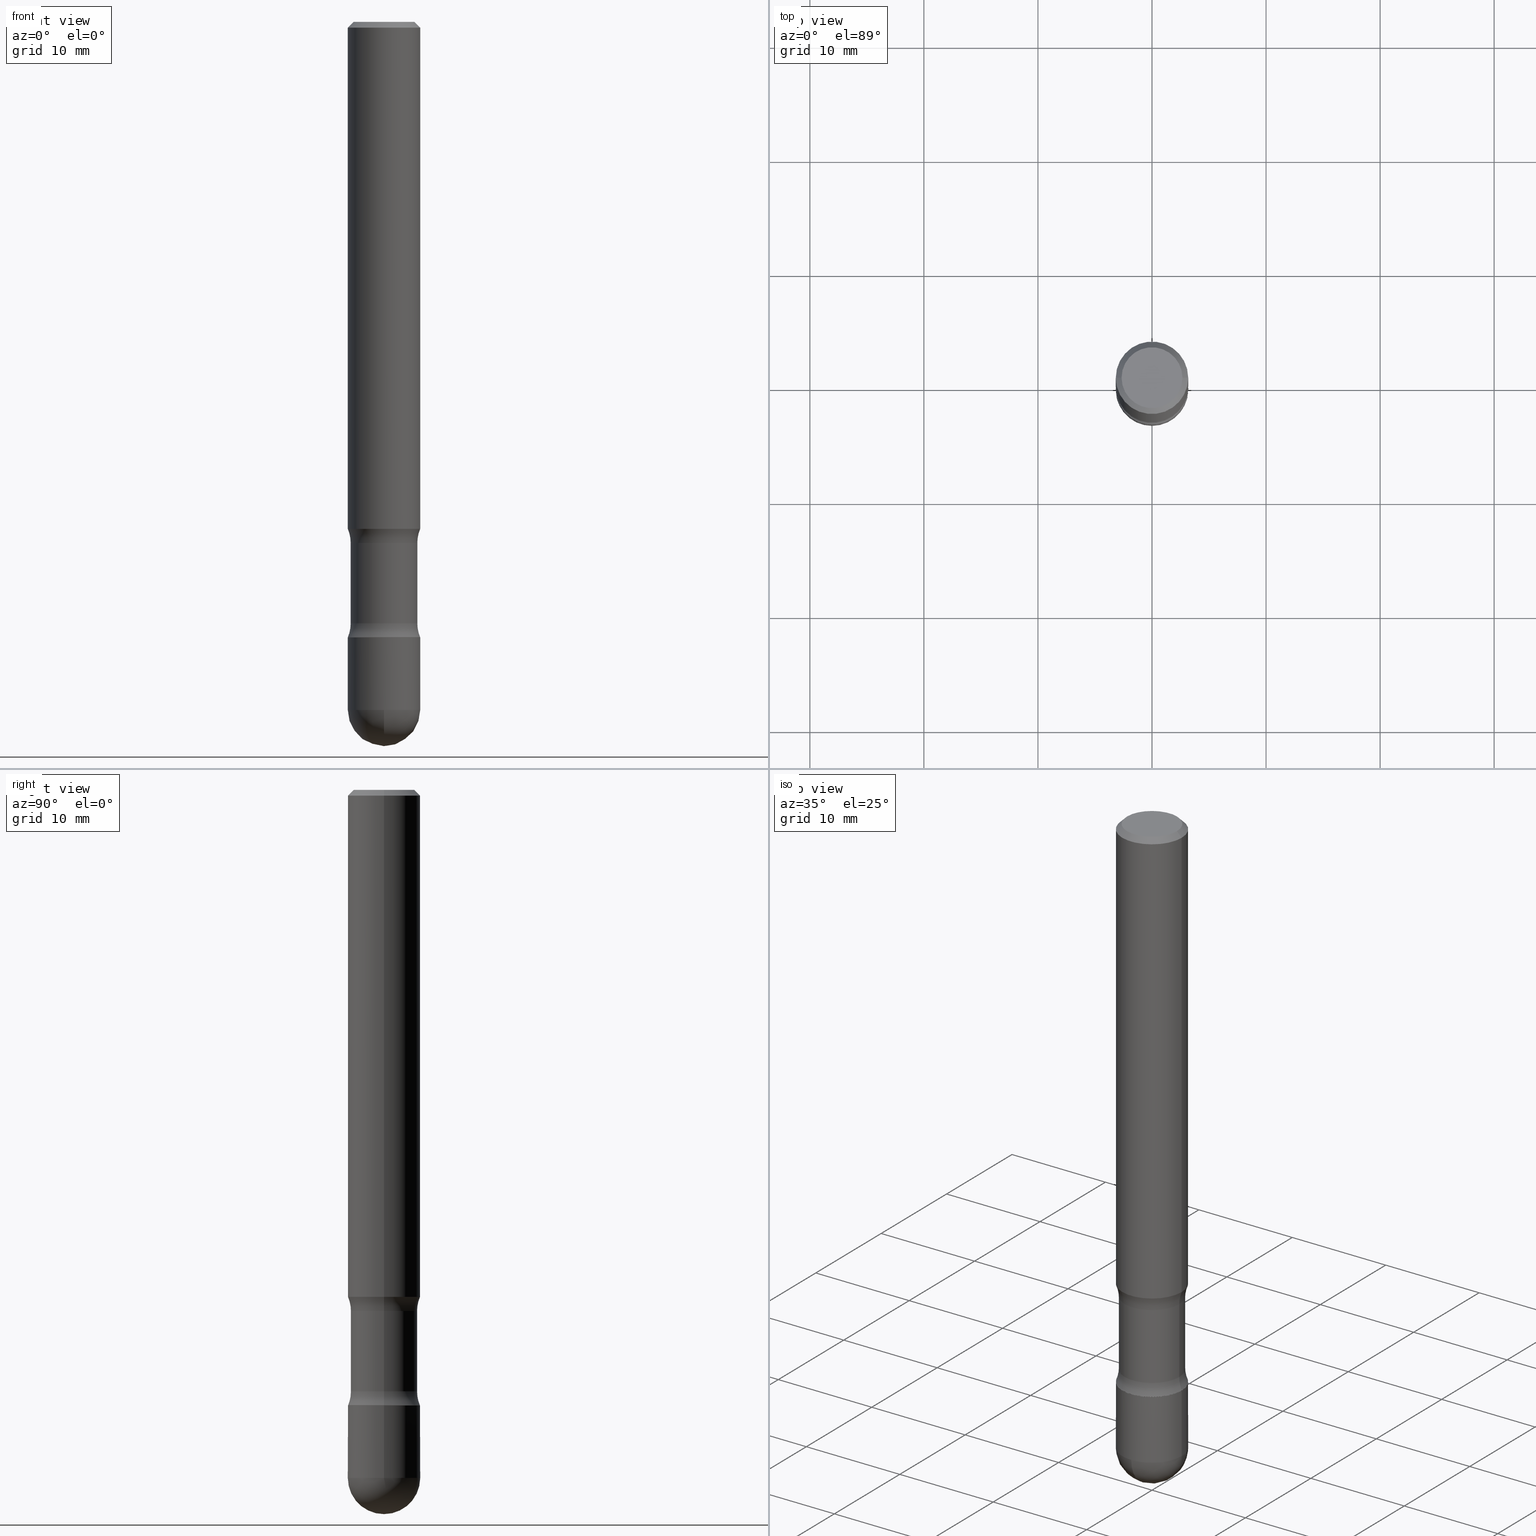
[diagram: canonical four-view strip — front | top / right | iso, engineering-drawing reading convention]
A machine part, canonical four-view strip (front | top / right | iso — engineering-drawing reading convention). The complete STEP part file that produces these views, byte-faithful:
ISO-10303-21;
HEADER;
FILE_DESCRIPTION (( 'STEP AP203' ),
    '1' );
FILE_NAME ('35005.STEP',
    '2024-02-29T19:23:56',
    ( '' ),
    ( '' ),
    'SwSTEP 2.0',
    'SolidWorks 2023',
    '' );
FILE_SCHEMA (( 'CONFIG_CONTROL_DESIGN' ));
ENDSEC;

DATA;
#1 = DIRECTION ( 'NONE',  ( 2.445468806185136597E-29, -3.491481338843145583E-15, -1.000000000000000000 ) ) ;
#2 = VERTEX_POINT ( 'NONE', #199 ) ;
#3 = CALENDAR_DATE ( 2024, 29, 2 ) ;
#4 = CARTESIAN_POINT ( 'NONE',  ( 5.196621213143415268E-29, -7.419397845041683624E-15, -2.125000000000000000 ) ) ;
#5 = CARTESIAN_POINT ( 'NONE',  ( -0.1249999999999995559, -6.967654592696955583E-15, -2.125000000000000000 ) ) ;
#6 = EDGE_CURVE ( 'NONE', #159, #195, #90, .T. ) ;
#7 = CARTESIAN_POINT ( 'NONE',  ( 5.807988414689700538E-29, -8.292268179752471696E-15, -2.375000000000000000 ) ) ;
#8 = DIRECTION ( 'NONE',  ( 1.000000000000000000, -6.982962677686264344E-15, 0.000000000000000000 ) ) ;
#9 = CIRCLE ( 'NONE', #82, 0.1249999999999999584 ) ;
#10 = EDGE_CURVE ( 'NONE', #56, #120, #84, .T. ) ;
#11 = AXIS2_PLACEMENT_3D ( 'NONE', #4, #391, #37 ) ;
#12 = CARTESIAN_POINT ( 'NONE',  ( 5.076818198002480167E-29, -7.248350890509379489E-15, -2.076010205144336318 ) ) ;
#13 = EDGE_CURVE ( 'NONE', #423, #54, #50, .T. ) ;
#14 = FACE_OUTER_BOUND ( 'NONE', #119, .T. ) ;
#15 = ORIENTED_EDGE ( 'NONE', *, *, #385, .F. ) ;
#16 = DIRECTION ( 'NONE',  ( -1.000000000000000000, 6.982962677686266711E-15, 0.000000000000000000 ) ) ;
#17 = SPHERICAL_SURFACE ( 'NONE', #566, 0.1250000000000000000 ) ;
#18 = ORIENTED_EDGE ( 'NONE', *, *, #43, .F. ) ;
#19 = CIRCLE ( 'NONE', #227, 0.1249999999999946709 ) ;
#20 = ORIENTED_EDGE ( 'NONE', *, *, #271, .T. ) ;
#21 = ORGANIZATION ( 'UNSPECIFIED', 'UNSPECIFIED', '' ) ;
#22 = EDGE_LOOP ( 'NONE', ( #280, #390 ) ) ;
#23 = DIRECTION ( 'NONE',  ( -2.445468806185136597E-29, 3.491481338843145583E-15, 1.000000000000000000 ) ) ;
#24 = ORIENTED_EDGE ( 'NONE', *, *, #94, .T. ) ;
#25 = PRODUCT_DEFINITION_SHAPE ( 'NONE', 'NONE',  #468 ) ;
#26 = VERTEX_POINT ( 'NONE', #134 ) ;
#27 = EDGE_CURVE ( 'NONE', #61, #337, #42, .T. ) ;
#28 = DIRECTION ( 'NONE',  ( 6.860497997771531562E-15, 1.000000000000000000, -3.491481338843145583E-15 ) ) ;
#29 = CALENDAR_DATE ( 2024, 29, 2 ) ;
#30 = ADVANCED_FACE ( 'NONE', ( #87 ), #179, .T. ) ;
#31 = CC_DESIGN_PERSON_AND_ORGANIZATION_ASSIGNMENT ( #206, #36, ( #40 ) ) ;
#32 = EDGE_CURVE ( 'NONE', #56, #61, #101, .T. ) ;
#33 = VECTOR ( 'NONE', #349, 39.37007874015748143 ) ;
#34 = ORIENTED_EDGE ( 'NONE', *, *, #238, .F. ) ;
#35 = FACE_OUTER_BOUND ( 'NONE', #477, .T. ) ;
#36 = PERSON_AND_ORGANIZATION_ROLE ( 'design_supplier' ) ;
#37 = DIRECTION ( 'NONE',  ( -1.000000000000000000, 6.982962677686265922E-15, -4.876176775795935793E-29 ) ) ;
#38 = CIRCLE ( 'NONE', #203, 0.1249999999999995559 ) ;
#39 = PERSON_AND_ORGANIZATION ( #392, #21 ) ;
#40 = PRODUCT_DEFINITION_FORMATION_WITH_SPECIFIED_SOURCE ( 'ANY', '', #538, .NOT_KNOWN. ) ;
#41 = DIRECTION ( 'NONE',  ( 1.000000000000000000, -6.982962677686267499E-15, 0.000000000000000000 ) ) ;
#42 = LINE ( 'NONE', #304, #333 ) ;
#43 = EDGE_CURVE ( 'NONE', #389, #400, #9, .T. ) ;
#44 = CARTESIAN_POINT ( 'NONE',  ( 0.1249999999999995559, -8.292268179752463807E-15, -2.125000000000000000 ) ) ;
#45 = CARTESIAN_POINT ( 'NONE',  ( 0.1249999999999999584, -3.947523234597624247E-15, -1.750000000000001776 ) ) ;
#46 = ORIENTED_EDGE ( 'NONE', *, *, #197, .T. ) ;
#47 = CARTESIAN_POINT ( 'NONE',  ( 0.000000000000000000, 0.000000000000000000, 0.000000000000000000 ) ) ;
#48 = EDGE_CURVE ( 'NONE', #535, #26, #161, .T. ) ;
#49 = CARTESIAN_POINT ( 'NONE',  ( 0.000000000000000000, 0.000000000000000000, 0.000000000000000000 ) ) ;
#50 = CIRCLE ( 'NONE', #478, 0.1248510749934465813 ) ;
#51 = AXIS2_PLACEMENT_3D ( 'NONE', #328, #23, #335 ) ;
#52 = LOCAL_TIME ( 14, 23, 56.00000000000000000, #384 ) ;
#53 = CARTESIAN_POINT ( 'NONE',  ( 5.195762670198309491E-29, -7.418172073253531397E-15, -2.124648925006553224 ) ) ;
#54 = VERTEX_POINT ( 'NONE', #110 ) ;
#55 = CC_DESIGN_PERSON_AND_ORGANIZATION_ASSIGNMENT ( #467, #421, ( #40 ) ) ;
#56 = VERTEX_POINT ( 'NONE', #326 ) ;
#57 = FACE_OUTER_BOUND ( 'NONE', #499, .T. ) ;
#58 = EDGE_LOOP ( 'NONE', ( #268, #125, #485, #554 ) ) ;
#59 = ORIENTED_EDGE ( 'NONE', *, *, #208, .T. ) ;
#60 = CIRCLE ( 'NONE', #537, 0.1249999999999995559 ) ;
#61 = VERTEX_POINT ( 'NONE', #452 ) ;
#62 = ORIENTED_EDGE ( 'NONE', *, *, #247, .F. ) ;
#63 = ADVANCED_BREP_SHAPE_REPRESENTATION ( '35005', ( #284, #289, #310 ), #185 ) ;
#64 = ORIENTED_EDGE ( 'NONE', *, *, #340, .F. ) ;
#65 = DIRECTION ( 'NONE',  ( -1.000000000000000000, 6.982962677686266711E-15, -4.883557194083113462E-29 ) ) ;
#66 = ORIENTED_EDGE ( 'NONE', *, *, #92, .T. ) ;
#67 = EDGE_CURVE ( 'NONE', #26, #535, #149, .T. ) ;
#68 = APPLICATION_PROTOCOL_DEFINITION ( 'international standard', 'config_control_design', 1994, #172 ) ;
#69 = ORIENTED_EDGE ( 'NONE', *, *, #340, .T. ) ;
#70 = EDGE_LOOP ( 'NONE', ( #541, #285, #62, #393 ) ) ;
#71 = DATE_AND_TIME ( #207, #52 ) ;
#72 = DESIGN_CONTEXT ( 'detailed design', #172, 'design' ) ;
#73 = CIRCLE ( 'NONE', #251, 0.1149999999999994499 ) ;
#74 = LINE ( 'NONE', #459, #323 ) ;
#75 = ORIENTED_EDGE ( 'NONE', *, *, #412, .F. ) ;
#76 = EDGE_CURVE ( 'NONE', #355, #423, #314, .T. ) ;
#77 = EDGE_CURVE ( 'NONE', #104, #410, #226, .T. ) ;
#78 = DIMENSIONAL_EXPONENTS ( 1.000000000000000000, 0.000000000000000000, 0.000000000000000000, 0.000000000000000000, 0.000000000000000000, 0.000000000000000000, 0.000000000000000000 ) ;
#79 = DIRECTION ( 'NONE',  ( -2.438088387897960049E-29, 3.491481338843145188E-15, 1.000000000000000000 ) ) ;
#80 = DIRECTION ( 'NONE',  ( -1.000000000000000000, 6.982962677686266711E-15, 0.000000000000000000 ) ) ;
#81 = ORIENTED_EDGE ( 'NONE', *, *, #495, .F. ) ;
#82 = AXIS2_PLACEMENT_3D ( 'NONE', #341, #296, #466 ) ;
#83 = AXIS2_PLACEMENT_3D ( 'NONE', #350, #178, #275 ) ;
#84 = LINE ( 'NONE', #564, #407 ) ;
#85 = PERSON_AND_ORGANIZATION_ROLE ( 'design_owner' ) ;
#86 = CARTESIAN_POINT ( 'NONE',  ( 5.196621213143415268E-29, -7.419397845041683624E-15, -2.125000000000000000 ) ) ;
#87 = FACE_OUTER_BOUND ( 'NONE', #546, .T. ) ;
#88 = DIRECTION ( 'NONE',  ( -6.982962677686265922E-15, -1.000000000000000000, 4.370956789862821150E-15 ) ) ;
#89 = ADVANCED_FACE ( 'NONE', ( #533 ), #145, .T. ) ;
#90 = CIRCLE ( 'NONE', #286, 0.1249999999999995559 ) ;
#91 = AXIS2_PLACEMENT_3D ( 'NONE', #303, #531, #133 ) ;
#92 = EDGE_CURVE ( 'NONE', #410, #104, #299, .T. ) ;
#93 = DIRECTION ( 'NONE',  ( 1.000000000000000000, -6.982962677686265922E-15, 4.876176775795935793E-29 ) ) ;
#94 = EDGE_CURVE ( 'NONE', #293, #159, #403, .T. ) ;
#95 = DIRECTION ( 'NONE',  ( -6.982962677686266711E-15, -1.000000000000000000, 3.491481338843145583E-15 ) ) ;
#96 = APPLICATION_CONTEXT ( 'configuration controlled 3d designs of mechanical parts and assemblies' ) ;
#97 = FACE_OUTER_BOUND ( 'NONE', #306, .T. ) ;
#98 = FACE_OUTER_BOUND ( 'NONE', #545, .T. ) ;
#99 = PLANE ( 'NONE',  #11 ) ;
#100 = APPROVAL ( #216, 'UNSPECIFIED' ) ;
#101 = CIRCLE ( 'NONE', #183, 0.1149999999999995609 ) ;
#102 = TOROIDAL_SURFACE ( 'NONE', #431, 0.2399999999999879452, 0.1249999999999883843 ) ;
#103 = DIRECTION ( 'NONE',  ( 1.000000000000000000, -6.982962677686265922E-15, 4.876176775795935793E-29 ) ) ;
#104 = VERTEX_POINT ( 'NONE', #360 ) ;
#105 = ORIENTED_EDGE ( 'NONE', *, *, #311, .F. ) ;
#106 = CARTESIAN_POINT ( 'NONE',  ( 5.196621213143415268E-29, -7.419397845041683624E-15, -2.125000000000000000 ) ) ;
#107 = CARTESIAN_POINT ( 'NONE',  ( 4.890937612370288047E-31, -6.982962677686311331E-17, -0.02000000000000005940 ) ) ;
#108 = DIRECTION ( 'NONE',  ( 2.445468806185136597E-29, -3.491481338843145583E-15, -1.000000000000000000 ) ) ;
#109 = FACE_OUTER_BOUND ( 'NONE', #279, .T. ) ;
#110 = CARTESIAN_POINT ( 'NONE',  ( 0.1248510749934465675, -8.274712623265694262E-15, -2.124648925006553224 ) ) ;
#111 = CARTESIAN_POINT ( 'NONE',  ( 0.2399999999999942180, -8.894870409974511155E-15, -2.076010205144337206 ) ) ;
#112 = ORIENTED_EDGE ( 'NONE', *, *, #127, .T. ) ;
#113 = ADVANCED_FACE ( 'NONE', ( #363 ), #418, .T. ) ;
#114 = CARTESIAN_POINT ( 'NONE',  ( 0.1249999999999995559, -8.728703347107801834E-16, 6.095220969744898021E-30 ) ) ;
#115 = AXIS2_PLACEMENT_3D ( 'NONE', #422, #168, #447 ) ;
#116 = FACE_OUTER_BOUND ( 'NONE', #317, .T. ) ;
#117 = ORIENTED_EDGE ( 'NONE', *, *, #160, .T. ) ;
#118 = CARTESIAN_POINT ( 'NONE',  ( 4.890937612370288047E-31, -6.982962677686311331E-17, -0.02000000000000005940 ) ) ;
#119 = EDGE_LOOP ( 'NONE', ( #260, #196, #117, #112, #211 ) ) ;
#120 = VERTEX_POINT ( 'NONE', #329 ) ;
#121 = ORIENTED_EDGE ( 'NONE', *, *, #10, .T. ) ;
#122 = DATE_AND_TIME ( #29, #397 ) ;
#123 = DATE_AND_TIME ( #3, #503 ) ;
#124 = CIRCLE ( 'NONE', #257, 0.1250000000000000000 ) ;
#125 = ORIENTED_EDGE ( 'NONE', *, *, #77, .T. ) ;
#126 = AXIS2_PLACEMENT_3D ( 'NONE', #282, #409, #325 ) ;
#127 = EDGE_CURVE ( 'NONE', #254, #195, #498, .T. ) ;
#128 = CIRCLE ( 'NONE', #514, 0.1249999999999946709 ) ;
#129 = AXIS2_PLACEMENT_3D ( 'NONE', #246, #361, #103 ) ;
#130 = DATE_TIME_ROLE ( 'classification_date' ) ;
#131 = FACE_OUTER_BOUND ( 'NONE', #453, .T. ) ;
#132 = ADVANCED_FACE ( 'NONE', ( #424 ), #214, .F. ) ;
#133 = DIRECTION ( 'NONE',  ( -1.000000000000000000, 6.982962677686262766E-15, 0.000000000000000000 ) ) ;
#134 = CARTESIAN_POINT ( 'NONE',  ( -0.1249999999999996253, 8.030407079339175754E-16, -0.02000000000000005940 ) ) ;
#135 = COORDINATED_UNIVERSAL_TIME_OFFSET ( 5, 0, .BEHIND. ) ;
#136 = CARTESIAN_POINT ( 'NONE',  ( 5.412474005944231364E-29, -8.858667324358121756E-15, -2.375000000000000000 ) ) ;
#137 = ADVANCED_FACE ( 'NONE', ( #109 ), #362, .T. ) ;
#138 = LINE ( 'NONE', #220, #193 ) ;
#139 = DIRECTION ( 'NONE',  ( 2.445468806185136597E-29, -3.491481338843145583E-15, -1.000000000000000000 ) ) ;
#140 = SPHERICAL_SURFACE ( 'NONE', #334, 0.1250000000000000000 ) ;
#141 = CIRCLE ( 'NONE', #264, 0.1149999999999994499 ) ;
#142 = APPROVAL_PERSON_ORGANIZATION ( #510, #562, #212 ) ;
#143 = CARTESIAN_POINT ( 'NONE',  ( -0.1149999999999994499, -6.445310182575463392E-15, -2.076010205144336318 ) ) ;
#144 = DIRECTION ( 'NONE',  ( 7.105427357601001070E-15, 1.000000000000000000, 0.000000000000000000 ) ) ;
#145 = CYLINDRICAL_SURFACE ( 'NONE', #548, 0.1249999999999997918 ) ;
#146 =( NAMED_UNIT ( * ) PLANE_ANGLE_UNIT ( ) SI_UNIT ( $, .RADIAN. ) );
#147 = PLANE ( 'NONE',  #295 ) ;
#148 = DIRECTION ( 'NONE',  ( 6.860497997771531562E-15, 1.000000000000000000, -3.491481338843145583E-15 ) ) ;
#149 = CIRCLE ( 'NONE', #405, 0.1249999999999996253 ) ;
#150 = AXIS2_PLACEMENT_3D ( 'NONE', #228, #224, #395 ) ;
#151 = ORIENTED_EDGE ( 'NONE', *, *, #331, .T. ) ;
#152 = DIRECTION ( 'NONE',  ( 2.445468806185136597E-29, -3.491481338843145583E-15, -1.000000000000000000 ) ) ;
#153 = UNCERTAINTY_MEASURE_WITH_UNIT (LENGTH_MEASURE( 1.000000000000000082E-05 ), #454, 'distance_accuracy_value', 'NONE');
#154 = DIRECTION ( 'NONE',  ( -1.000000000000000000, 6.982962677686266711E-15, -4.883557194083113462E-29 ) ) ;
#155 = DIRECTION ( 'NONE',  ( -2.445468806185136597E-29, 3.491481338843145583E-15, 1.000000000000000000 ) ) ;
#156 = CARTESIAN_POINT ( 'NONE',  ( 5.712812817410001839E-29, -9.302756534208185950E-15, -2.500000000000000000 ) ) ;
#157 = ORIENTED_EDGE ( 'NONE', *, *, #311, .T. ) ;
#158 = ORIENTED_EDGE ( 'NONE', *, *, #434, .F. ) ;
#159 = VERTEX_POINT ( 'NONE', #5 ) ;
#160 = EDGE_CURVE ( 'NONE', #187, #254, #38, .T. ) ;
#161 = CIRCLE ( 'NONE', #469, 0.1249999999999996253 ) ;
#162 = VECTOR ( 'NONE', #482, 39.37007874015748143 ) ;
#163 = FACE_OUTER_BOUND ( 'NONE', #58, .T. ) ;
#164 = ORIENTED_EDGE ( 'NONE', *, *, #43, .T. ) ;
#165 = DIRECTION ( 'NONE',  ( 0.7071067811865474617, -7.319954787623256045E-15, -0.7071067811865474617 ) ) ;
#166 = ORIENTED_EDGE ( 'NONE', *, *, #274, .T. ) ;
#167 = PERSON_AND_ORGANIZATION ( #392, #21 ) ;
#168 = DIRECTION ( 'NONE',  ( 2.445468806185136597E-29, -3.491481338843145583E-15, -1.000000000000000000 ) ) ;
#169 = CIRCLE ( 'NONE', #443, 0.1250000000000000000 ) ;
#170 = APPROVAL_PERSON_ORGANIZATION ( #167, #205, #507 ) ;
#171 = ADVANCED_FACE ( 'NONE', ( #308 ), #102, .F. ) ;
#172 = APPLICATION_CONTEXT ( 'configuration controlled 3d designs of mechanical parts and assemblies' ) ;
#173 = LINE ( 'NONE', #345, #162 ) ;
#174 = CIRCLE ( 'NONE', #491, 0.1244999999999995138 ) ;
#175 = DIRECTION ( 'NONE',  ( 1.000000000000000000, -6.982962677686264344E-15, 0.000000000000000000 ) ) ;
#176 = APPROVAL_STATUS ( 'not_yet_approved' ) ;
#177 = ADVANCED_FACE ( 'NONE', ( #98 ), #140, .T. ) ;
#178 = DIRECTION ( 'NONE',  ( 2.445468806185136597E-29, -3.491481338843145583E-15, -1.000000000000000000 ) ) ;
#179 = CYLINDRICAL_SURFACE ( 'NONE', #557, 0.1249999999999997918 ) ;
#180 = CARTESIAN_POINT ( 'NONE',  ( -8.728703347107256534E-16, -0.1250000000000083544, -2.374999999999999556 ) ) ;
#181 = DIRECTION ( 'NONE',  ( -1.000000000000000000, 6.982962677686264344E-15, 0.000000000000000000 ) ) ;
#182 = DIRECTION ( 'NONE',  ( 2.445468806185136597E-29, -3.491481338843145583E-15, -1.000000000000000000 ) ) ;
#183 = AXIS2_PLACEMENT_3D ( 'NONE', #448, #413, #555 ) ;
#184 = AXIS2_PLACEMENT_3D ( 'NONE', #307, #213, #41 ) ;
#185 =( GEOMETRIC_REPRESENTATION_CONTEXT ( 3 ) GLOBAL_UNCERTAINTY_ASSIGNED_CONTEXT ( ( #153 ) ) GLOBAL_UNIT_ASSIGNED_CONTEXT ( ( #454, #146, #234 ) ) REPRESENTATION_CONTEXT ( 'NONE', 'WORKASPACE' ) );
#186 = DIRECTION ( 'NONE',  ( -2.445468806185136597E-29, 3.491481338843145583E-15, 1.000000000000000000 ) ) ;
#187 = VERTEX_POINT ( 'NONE', #180 ) ;
#188 = ORIENTED_EDGE ( 'NONE', *, *, #274, .F. ) ;
#189 = CARTESIAN_POINT ( 'NONE',  ( 4.890937612370288047E-31, -6.982962677686311331E-17, -0.02000000000000005940 ) ) ;
#190 = DIRECTION ( 'NONE',  ( -2.445468806185136877E-29, 3.491481338843145188E-15, 1.000000000000000000 ) ) ;
#191 = LINE ( 'NONE', #457, #525 ) ;
#192 = ORIENTED_EDGE ( 'NONE', *, *, #331, .F. ) ;
#193 = VECTOR ( 'NONE', #442, 39.37007874015748143 ) ;
#194 = ADVANCED_FACE ( 'NONE', ( #35 ), #17, .T. ) ;
#195 = VERTEX_POINT ( 'NONE', #44 ) ;
#196 = ORIENTED_EDGE ( 'NONE', *, *, #497, .T. ) ;
#197 = EDGE_CURVE ( 'NONE', #423, #337, #19, .T. ) ;
#198 = CARTESIAN_POINT ( 'NONE',  ( 8.693788533719887480E-16, 0.1244999999999920892, -2.125000000000000444 ) ) ;
#199 = CARTESIAN_POINT ( 'NONE',  ( 8.881784197001796637E-16, 0.1249999999999911876, -2.375000000000000888 ) ) ;
#200 = ORIENTED_EDGE ( 'NONE', *, *, #160, .F. ) ;
#201 = APPLICATION_PROTOCOL_DEFINITION ( 'international standard', 'config_control_design', 1994, #96 ) ;
#202 = EDGE_LOOP ( 'NONE', ( #543, #404 ) ) ;
#203 = AXIS2_PLACEMENT_3D ( 'NONE', #351, #266, #8 ) ;
#204 = CALENDAR_DATE ( 2024, 29, 2 ) ;
#205 = APPROVAL ( #339, 'UNSPECIFIED' ) ;
#206 = PERSON_AND_ORGANIZATION ( #392, #21 ) ;
#207 = CALENDAR_DATE ( 2024, 29, 2 ) ;
#208 = EDGE_CURVE ( 'NONE', #104, #535, #74, .T. ) ;
#209 = CONICAL_SURFACE ( 'NONE', #51, 0.1244999999999995138, 0.7853981633980561261 ) ;
#210 = CC_DESIGN_PERSON_AND_ORGANIZATION_ASSIGNMENT ( #342, #305, ( #468 ) ) ;
#211 = ORIENTED_EDGE ( 'NONE', *, *, #6, .F. ) ;
#212 = APPROVAL_ROLE ( '' ) ;
#213 = DIRECTION ( 'NONE',  ( -6.982962677686266711E-15, -1.000000000000000000, 3.491481338843145583E-15 ) ) ;
#214 = TOROIDAL_SURFACE ( 'NONE', #536, 0.2399999999999942180, 0.1249999999999946709 ) ;
#215 = TOROIDAL_SURFACE ( 'NONE', #239, 0.2399999999999942180, 0.1249999999999946709 ) ;
#216 = APPROVAL_STATUS ( 'not_yet_approved' ) ;
#217 = DIRECTION ( 'NONE',  ( 2.445468806185136597E-29, -3.491481338843145583E-15, -1.000000000000000000 ) ) ;
#218 = CARTESIAN_POINT ( 'NONE',  ( 4.399373425964925266E-29, -6.281139297507810384E-15, -1.798989794855664126 ) ) ;
#219 = DIRECTION ( 'NONE',  ( 2.445468806185136597E-29, -3.491481338843145583E-15, -1.000000000000000000 ) ) ;
#220 = CARTESIAN_POINT ( 'NONE',  ( 0.1249999999999997918, -8.276960094763123491E-15, -2.125000000000000000 ) ) ;
#221 = DIRECTION ( 'NONE',  ( -2.445468806185136597E-29, 3.491481338843145583E-15, 1.000000000000000000 ) ) ;
#222 = ADVANCED_FACE ( 'NONE', ( #375 ), #253, .T. ) ;
#223 = DIRECTION ( 'NONE',  ( -1.000000000000000000, 6.982962677686265922E-15, -4.883557194083112340E-29 ) ) ;
#224 = DIRECTION ( 'NONE',  ( 2.445468806185136597E-29, -3.491481338843145583E-15, -1.000000000000000000 ) ) ;
#225 = ORIENTED_EDGE ( 'NONE', *, *, #352, .F. ) ;
#226 = CIRCLE ( 'NONE', #321, 0.1049999999999995659 ) ;
#227 = AXIS2_PLACEMENT_3D ( 'NONE', #273, #95, #231 ) ;
#228 = CARTESIAN_POINT ( 'NONE',  ( 5.196621213143415268E-29, -7.419397845041683624E-15, -2.125000000000000000 ) ) ;
#229 = FACE_OUTER_BOUND ( 'NONE', #230, .T. ) ;
#230 = EDGE_LOOP ( 'NONE', ( #105, #456, #492, #501 ) ) ;
#231 = DIRECTION ( 'NONE',  ( 1.000000000000000000, -6.982962677686265133E-15, 0.000000000000000000 ) ) ;
#232 = ORIENTED_EDGE ( 'NONE', *, *, #48, .T. ) ;
#233 = CARTESIAN_POINT ( 'NONE',  ( 5.076818198002482409E-29, -7.248350890509384222E-15, -2.076010205144337206 ) ) ;
#234 =( NAMED_UNIT ( * ) SI_UNIT ( $, .STERADIAN. ) SOLID_ANGLE_UNIT ( ) );
#235 = ORIENTED_EDGE ( 'NONE', *, *, #451, .T. ) ;
#236 = CC_DESIGN_DATE_AND_TIME_ASSIGNMENT ( #428, #130, ( #372 ) ) ;
#237 = VERTEX_POINT ( 'NONE', #156 ) ;
#238 = EDGE_CURVE ( 'NONE', #56, #389, #558, .T. ) ;
#239 = AXIS2_PLACEMENT_3D ( 'NONE', #233, #152, #65 ) ;
#240 = DIRECTION ( 'NONE',  ( 1.000000000000000000, -6.982962677686262766E-15, 0.000000000000000000 ) ) ;
#241 = CARTESIAN_POINT ( 'NONE',  ( 4.890937612370288047E-31, -6.982962677686311331E-17, -0.02000000000000005940 ) ) ;
#242 = CIRCLE ( 'NONE', #184, 0.1249999999999883843 ) ;
#243 = ORIENTED_EDGE ( 'NONE', *, *, #560, .F. ) ;
#244 = MECHANICAL_CONTEXT ( 'NONE', #96, 'mechanical' ) ;
#245 = ORIENTED_EDGE ( 'NONE', *, *, #27, .T. ) ;
#246 = CARTESIAN_POINT ( 'NONE',  ( 0.000000000000000000, 0.000000000000000000, 0.000000000000000000 ) ) ;
#247 = EDGE_CURVE ( 'NONE', #400, #389, #419, .T. ) ;
#248 = ADVANCED_FACE ( 'NONE', ( #437 ), #147, .T. ) ;
#249 = PERSON_AND_ORGANIZATION ( #392, #21 ) ;
#250 = ORIENTED_EDGE ( 'NONE', *, *, #412, .T. ) ;
#251 = AXIS2_PLACEMENT_3D ( 'NONE', #12, #473, #181 ) ;
#252 = DATE_AND_TIME ( #204, #444 ) ;
#253 = CYLINDRICAL_SURFACE ( 'NONE', #115, 0.1149999999999995054 ) ;
#254 = VERTEX_POINT ( 'NONE', #436 ) ;
#255 = APPROVAL_DATE_TIME ( #71, #205 ) ;
#256 = ADVANCED_FACE ( 'NONE', ( #511 ), #441, .T. ) ;
#257 = AXIS2_PLACEMENT_3D ( 'NONE', #346, #356, #144 ) ;
#258 = LOCAL_TIME ( 14, 23, 56.00000000000000000, #301 ) ;
#259 = DIRECTION ( 'NONE',  ( 2.445468806185136877E-29, -3.491481338843145188E-15, -1.000000000000000000 ) ) ;
#260 = ORIENTED_EDGE ( 'NONE', *, *, #94, .F. ) ;
#261 = APPROVAL_DATE_TIME ( #122, #100 ) ;
#262 = DIRECTION ( 'NONE',  ( -2.445468806185136597E-29, 3.491481338843145583E-15, 1.000000000000000000 ) ) ;
#263 = LINE ( 'NONE', #382, #33 ) ;
#264 = AXIS2_PLACEMENT_3D ( 'NONE', #516, #217, #265 ) ;
#265 = DIRECTION ( 'NONE',  ( -1.000000000000000000, 6.982962677686264344E-15, 0.000000000000000000 ) ) ;
#266 = DIRECTION ( 'NONE',  ( -2.445468806185136597E-29, 3.491481338843145583E-15, 1.000000000000000000 ) ) ;
#267 = DIRECTION ( 'NONE',  ( 2.445468806185136597E-29, -3.491481338843145583E-15, -1.000000000000000000 ) ) ;
#268 = ORIENTED_EDGE ( 'NONE', *, *, #208, .F. ) ;
#269 = DIRECTION ( 'NONE',  ( -0.7071067811869773401, 7.493145998871906638E-15, 0.7071067811861176944 ) ) ;
#270 = CARTESIAN_POINT ( 'NONE',  ( 5.807988414689700538E-29, -8.292268179752471696E-15, -2.375000000000000000 ) ) ;
#271 = EDGE_CURVE ( 'NONE', #120, #337, #141, .T. ) ;
#272 = CARTESIAN_POINT ( 'NONE',  ( 5.076818198002482409E-29, -7.248350890509384222E-15, -2.076010205144337206 ) ) ;
#273 = CARTESIAN_POINT ( 'NONE',  ( -0.2399999999999942180, -5.572439847864720285E-15, -2.076010205144337206 ) ) ;
#274 = EDGE_CURVE ( 'NONE', #450, #355, #174, .T. ) ;
#275 = DIRECTION ( 'NONE',  ( -1.000000000000000000, 6.982962677686266711E-15, 0.000000000000000000 ) ) ;
#276 = CONICAL_SURFACE ( 'NONE', #287, 0.1249999999999996253, 0.7853981633974482790 ) ;
#277 = DIRECTION ( 'NONE',  ( 1.000000000000000000, -6.982962677686264344E-15, 0.000000000000000000 ) ) ;
#278 = DIRECTION ( 'NONE',  ( 2.445468806185136597E-29, -3.491481338843145583E-15, -1.000000000000000000 ) ) ;
#279 = EDGE_LOOP ( 'NONE', ( #66, #59, #316, #243 ) ) ;
#280 = ORIENTED_EDGE ( 'NONE', *, *, #434, .T. ) ;
#281 = DIRECTION ( 'NONE',  ( 2.445468806185136597E-29, -3.491481338843145583E-15, -1.000000000000000000 ) ) ;
#282 = CARTESIAN_POINT ( 'NONE',  ( 0.000000000000000000, 0.000000000000000000, 0.000000000000000000 ) ) ;
#283 = LENGTH_MEASURE_WITH_UNIT ( LENGTH_MEASURE( 0.02539999999999999897 ), #366 );
#284 = MANIFOLD_SOLID_BREP ( 'Body-Move/Copy2[1]', #565 ) ;
#285 = ORIENTED_EDGE ( 'NONE', *, *, #399, .T. ) ;
#286 = AXIS2_PLACEMENT_3D ( 'NONE', #368, #221, #527 ) ;
#287 = AXIS2_PLACEMENT_3D ( 'NONE', #118, #108, #16 ) ;
#288 = CC_DESIGN_SECURITY_CLASSIFICATION ( #372, ( #40 ) ) ;
#289 = MANIFOLD_SOLID_BREP ( 'Body-Move/Copy2[2]', #524 ) ;
#290 = DIRECTION ( 'NONE',  ( 0.000000000000000000, 0.000000000000000000, 1.000000000000000000 ) ) ;
#291 = ORIENTED_EDGE ( 'NONE', *, *, #27, .F. ) ;
#292 = CARTESIAN_POINT ( 'NONE',  ( 0.1249999999999996253, -9.273918764983019825E-16, -0.02000000000000005940 ) ) ;
#293 = VERTEX_POINT ( 'NONE', #435 ) ;
#294 = ORIENTED_EDGE ( 'NONE', *, *, #238, .T. ) ;
#295 = AXIS2_PLACEMENT_3D ( 'NONE', #298, #79, #517 ) ;
#296 = DIRECTION ( 'NONE',  ( 2.445468806185136597E-29, -3.491481338843145583E-15, -1.000000000000000000 ) ) ;
#297 = APPROVAL_ROLE ( '' ) ;
#298 = CARTESIAN_POINT ( 'NONE',  ( 7.332110811570548689E-16, 0.1049999999999995659, -3.900823592740810138E-16 ) ) ;
#299 = CIRCLE ( 'NONE', #126, 0.1049999999999995659 ) ;
#300 = AXIS2_PLACEMENT_3D ( 'NONE', #270, #398, #277 ) ;
#301 = COORDINATED_UNIVERSAL_TIME_OFFSET ( 5, 0, .BEHIND. ) ;
#302 = CARTESIAN_POINT ( 'NONE',  ( -0.1049999999999995659, 7.332110811570549675E-16, -5.119985614585711703E-30 ) ) ;
#303 = CARTESIAN_POINT ( 'NONE',  ( 5.196621213143415268E-29, -7.419397845041683624E-15, -2.125000000000000000 ) ) ;
#304 = CARTESIAN_POINT ( 'NONE',  ( -0.1149999999999995054, -6.616357137107765949E-15, -2.125000000000000000 ) ) ;
#305 = PERSON_AND_ORGANIZATION_ROLE ( 'creator' ) ;
#306 = EDGE_LOOP ( 'NONE', ( #542, #488, #20, #493 ) ) ;
#307 = CARTESIAN_POINT ( 'NONE',  ( -0.2399999999999879452, -4.605228254863190623E-15, -1.798989794855664126 ) ) ;
#308 = FACE_OUTER_BOUND ( 'NONE', #338, .T. ) ;
#309 = AXIS2_PLACEMENT_3D ( 'NONE', #49, #186, #93 ) ;
#310 = AXIS2_PLACEMENT_3D ( 'NONE', #330, #290, #414 ) ;
#311 = EDGE_CURVE ( 'NONE', #355, #450, #425, .T. ) ;
#312 = DIRECTION ( 'NONE',  ( -1.000000000000000000, 6.982962677686265922E-15, 0.000000000000000000 ) ) ;
#313 = ADVANCED_FACE ( 'NONE', ( #131 ), #438, .T. ) ;
#314 = LINE ( 'NONE', #481, #343 ) ;
#315 = DIRECTION ( 'NONE',  ( -1.000000000000000000, 6.982962677686262766E-15, 0.000000000000000000 ) ) ;
#316 = ORIENTED_EDGE ( 'NONE', *, *, #67, .F. ) ;
#317 = EDGE_LOOP ( 'NONE', ( #471, #294, #164, #406 ) ) ;
#318 = DIRECTION ( 'NONE',  ( 2.445468806185136597E-29, -3.491481338843145583E-15, -1.000000000000000000 ) ) ;
#319 = DIRECTION ( 'NONE',  ( -1.000000000000000000, 6.860497997771527618E-15, 0.000000000000000000 ) ) ;
#320 = ORIENTED_EDGE ( 'NONE', *, *, #32, .T. ) ;
#321 = AXIS2_PLACEMENT_3D ( 'NONE', #47, #394, #529 ) ;
#322 = DIRECTION ( 'NONE',  ( 2.445468806185136597E-29, -3.491481338843145583E-15, -1.000000000000000000 ) ) ;
#323 = VECTOR ( 'NONE', #165, 39.37007874015748854 ) ;
#324 = DIRECTION ( 'NONE',  ( -1.000000000000000000, 6.860497997771530774E-15, 0.000000000000000000 ) ) ;
#325 = DIRECTION ( 'NONE',  ( -1.000000000000000000, 6.982962677686266711E-15, -4.876176775795935793E-29 ) ) ;
#326 = CARTESIAN_POINT ( 'NONE',  ( 0.1149999999999995609, -7.018875579974243082E-15, -1.798989794855664126 ) ) ;
#327 = DIRECTION ( 'NONE',  ( -1.000000000000000000, 6.982962677686266711E-15, 0.000000000000000000 ) ) ;
#328 = CARTESIAN_POINT ( 'NONE',  ( 5.196621213143415268E-29, -7.419397845041683624E-15, -2.125000000000000000 ) ) ;
#329 = CARTESIAN_POINT ( 'NONE',  ( 0.1149999999999994499, -7.553702363752317106E-15, -2.076010205144336318 ) ) ;
#330 = CARTESIAN_POINT ( 'NONE',  ( 0.000000000000000000, 0.000000000000000000, 0.000000000000000000 ) ) ;
#331 = EDGE_CURVE ( 'NONE', #237, #187, #169, .T. ) ;
#332 = EDGE_CURVE ( 'NONE', #26, #400, #263, .T. ) ;
#333 = VECTOR ( 'NONE', #476, 39.37007874015748143 ) ;
#334 = AXIS2_PLACEMENT_3D ( 'NONE', #427, #561, #88 ) ;
#335 = DIRECTION ( 'NONE',  ( 1.000000000000000000, -6.982962677686262766E-15, 0.000000000000000000 ) ) ;
#336 = ORIENTED_EDGE ( 'NONE', *, *, #76, .F. ) ;
#337 = VERTEX_POINT ( 'NONE', #143 ) ;
#338 = EDGE_LOOP ( 'NONE', ( #34, #15, #359, #386 ) ) ;
#339 = APPROVAL_STATUS ( 'not_yet_approved' ) ;
#340 = EDGE_CURVE ( 'NONE', #254, #2, #508, .T. ) ;
#341 = CARTESIAN_POINT ( 'NONE',  ( 4.279570410823993529E-29, -6.110092342975510982E-15, -1.750000000000001776 ) ) ;
#342 = PERSON_AND_ORGANIZATION ( #392, #21 ) ;
#343 = VECTOR ( 'NONE', #269, 39.37007874015748143 ) ;
#344 = CIRCLE ( 'NONE', #83, 0.1149999999999995609 ) ;
#345 = CARTESIAN_POINT ( 'NONE',  ( 0.1244999999999995138, -8.288776698413619222E-15, -2.125000000000000000 ) ) ;
#346 = CARTESIAN_POINT ( 'NONE',  ( 5.412474005944231364E-29, -8.858667324358121756E-15, -2.375000000000000000 ) ) ;
#347 = SECURITY_CLASSIFICATION_LEVEL ( 'unclassified' ) ;
#348 = EDGE_CURVE ( 'NONE', #61, #400, #242, .T. ) ;
#349 = DIRECTION ( 'NONE',  ( 2.445468806185136877E-29, -3.491481338843145188E-15, -1.000000000000000000 ) ) ;
#350 = CARTESIAN_POINT ( 'NONE',  ( 4.399373425964925266E-29, -6.281139297507810384E-15, -1.798989794855664126 ) ) ;
#351 = CARTESIAN_POINT ( 'NONE',  ( 5.807988414689700538E-29, -8.292268179752471696E-15, -2.375000000000000000 ) ) ;
#352 = EDGE_CURVE ( 'NONE', #237, #2, #124, .T. ) ;
#353 = AXIS2_PLACEMENT_3D ( 'NONE', #198, #496, #547 ) ;
#354 = ORIENTED_EDGE ( 'NONE', *, *, #385, .T. ) ;
#355 = VERTEX_POINT ( 'NONE', #521 ) ;
#356 = DIRECTION ( 'NONE',  ( 1.000000000000000000, -7.105427357601001070E-15, 4.926315508542082329E-29 ) ) ;
#357 = ORIENTED_EDGE ( 'NONE', *, *, #352, .T. ) ;
#358 = CARTESIAN_POINT ( 'NONE',  ( 5.807988414689700538E-29, -8.292268179752471696E-15, -2.375000000000000000 ) ) ;
#359 = ORIENTED_EDGE ( 'NONE', *, *, #348, .T. ) ;
#360 = CARTESIAN_POINT ( 'NONE',  ( 0.1049999999999995659, -8.238720831321548048E-16, 5.444276250344130447E-30 ) ) ;
#361 = DIRECTION ( 'NONE',  ( -2.445468806185136597E-29, 3.491481338843145583E-15, 1.000000000000000000 ) ) ;
#362 = CONICAL_SURFACE ( 'NONE', #430, 0.1249999999999996253, 0.7853981633974482790 ) ;
#363 = FACE_OUTER_BOUND ( 'NONE', #439, .T. ) ;
#364 = DIRECTION ( 'NONE',  ( -1.000000000000000000, 6.982962677686266711E-15, 0.000000000000000000 ) ) ;
#365 = ORIENTED_EDGE ( 'NONE', *, *, #13, .F. ) ;
#366 =( LENGTH_UNIT ( ) NAMED_UNIT ( * ) SI_UNIT ( $, .METRE. ) );
#367 = EDGE_LOOP ( 'NONE', ( #354, #121, #75, #291 ) ) ;
#368 = CARTESIAN_POINT ( 'NONE',  ( 5.196621213143415268E-29, -7.419397845041683624E-15, -2.125000000000000000 ) ) ;
#369 = DIRECTION ( 'NONE',  ( -0.7071067811865474617, 2.468850131082256666E-15, -0.7071067811865474617 ) ) ;
#370 = ADVANCED_FACE ( 'NONE', ( #387 ), #99, .F. ) ;
#371 = TOROIDAL_SURFACE ( 'NONE', #378, 0.2399999999999879452, 0.1249999999999883843 ) ;
#372 = SECURITY_CLASSIFICATION ( '', '', #347 ) ;
#373 = DIRECTION ( 'NONE',  ( -1.000000000000000000, 6.982962677686266711E-15, 0.000000000000000000 ) ) ;
#374 = APPROVAL_DATE_TIME ( #252, #562 ) ;
#375 = FACE_OUTER_BOUND ( 'NONE', #553, .T. ) ;
#376 = ORIENTED_EDGE ( 'NONE', *, *, #497, .F. ) ;
#377 = COORDINATED_UNIVERSAL_TIME_OFFSET ( 5, 0, .BEHIND. ) ;
#378 = AXIS2_PLACEMENT_3D ( 'NONE', #402, #544, #534 ) ;
#379 = DIRECTION ( 'NONE',  ( -6.982962677686265922E-15, -1.000000000000000000, 0.000000000000000000 ) ) ;
#380 = SHAPE_DEFINITION_REPRESENTATION ( #25, #63 ) ;
#381 = AXIS2_PLACEMENT_3D ( 'NONE', #539, #148, #324 ) ;
#382 = CARTESIAN_POINT ( 'NONE',  ( -0.1249999999999997918, -6.546527510330901862E-15, -2.125000000000000000 ) ) ;
#383 = DIRECTION ( 'NONE',  ( -1.000000000000000000, 6.982962677686265922E-15, 0.000000000000000000 ) ) ;
#384 = COORDINATED_UNIVERSAL_TIME_OFFSET ( 5, 0, .BEHIND. ) ;
#385 = EDGE_CURVE ( 'NONE', #61, #56, #344, .T. ) ;
#386 = ORIENTED_EDGE ( 'NONE', *, *, #247, .T. ) ;
#387 = FACE_OUTER_BOUND ( 'NONE', #22, .T. ) ;
#388 = DIRECTION ( 'NONE',  ( -1.000000000000000000, 6.982962677686265133E-15, 0.000000000000000000 ) ) ;
#389 = VERTEX_POINT ( 'NONE', #45 ) ;
#390 = ORIENTED_EDGE ( 'NONE', *, *, #6, .T. ) ;
#391 = DIRECTION ( 'NONE',  ( 2.438088387897960049E-29, -3.491481338843145188E-15, -1.000000000000000000 ) ) ;
#392 = PERSON ( 'UNSPECIFIED', 'UNSPECIFIED', 'UNSPECIFIED', ('UNSPECIFIED'), ('UNSPECIFIED'), ('UNSPECIFIED') ) ;
#393 = ORIENTED_EDGE ( 'NONE', *, *, #332, .F. ) ;
#394 = DIRECTION ( 'NONE',  ( 2.445468806185136597E-29, -3.491481338843145583E-15, -1.000000000000000000 ) ) ;
#395 = DIRECTION ( 'NONE',  ( -1.000000000000000000, 6.982962677686269866E-15, 0.000000000000000000 ) ) ;
#396 = AXIS2_PLACEMENT_3D ( 'NONE', #53, #526, #312 ) ;
#397 = LOCAL_TIME ( 14, 23, 56.00000000000000000, #135 ) ;
#398 = DIRECTION ( 'NONE',  ( -2.445468806185136597E-29, 3.491481338843145583E-15, 1.000000000000000000 ) ) ;
#399 = EDGE_CURVE ( 'NONE', #535, #389, #138, .T. ) ;
#400 = VERTEX_POINT ( 'NONE', #480 ) ;
#401 = CARTESIAN_POINT ( 'NONE',  ( -0.1249999999999995559, 8.881784197001220769E-16, -6.148668862818609806E-30 ) ) ;
#402 = CARTESIAN_POINT ( 'NONE',  ( 4.399373425964925266E-29, -6.281139297507810384E-15, -1.798989794855664126 ) ) ;
#403 = LINE ( 'NONE', #401, #440 ) ;
#404 = ORIENTED_EDGE ( 'NONE', *, *, #77, .F. ) ;
#405 = AXIS2_PLACEMENT_3D ( 'NONE', #241, #318, #80 ) ;
#406 = ORIENTED_EDGE ( 'NONE', *, *, #348, .F. ) ;
#407 = VECTOR ( 'NONE', #259, 39.37007874015748143 ) ;
#408 = DIRECTION ( 'NONE',  ( -1.000000000000000000, 6.982962677686266711E-15, 0.000000000000000000 ) ) ;
#409 = DIRECTION ( 'NONE',  ( 2.445468806185136597E-29, -3.491481338843145583E-15, -1.000000000000000000 ) ) ;
#410 = VERTEX_POINT ( 'NONE', #302 ) ;
#411 = CC_DESIGN_DATE_AND_TIME_ASSIGNMENT ( #123, #556, ( #468 ) ) ;
#412 = EDGE_CURVE ( 'NONE', #337, #120, #73, .T. ) ;
#413 = DIRECTION ( 'NONE',  ( 2.445468806185136597E-29, -3.491481338843145583E-15, -1.000000000000000000 ) ) ;
#414 = DIRECTION ( 'NONE',  ( 1.000000000000000000, 0.000000000000000000, 0.000000000000000000 ) ) ;
#415 = ORIENTED_EDGE ( 'NONE', *, *, #127, .F. ) ;
#416 = ORIENTED_EDGE ( 'NONE', *, *, #432, .T. ) ;
#417 = CALENDAR_DATE ( 2024, 29, 2 ) ;
#418 = CONICAL_SURFACE ( 'NONE', #463, 0.1244999999999995138, 0.7853981633980561261 ) ;
#419 = CIRCLE ( 'NONE', #502, 0.1249999999999999584 ) ;
#420 = ORIENTED_EDGE ( 'NONE', *, *, #271, .F. ) ;
#421 = PERSON_AND_ORGANIZATION_ROLE ( 'creator' ) ;
#422 = CARTESIAN_POINT ( 'NONE',  ( 5.196621213143415268E-29, -7.419397845041683624E-15, -2.125000000000000000 ) ) ;
#423 = VERTEX_POINT ( 'NONE', #429 ) ;
#424 = FACE_OUTER_BOUND ( 'NONE', #552, .T. ) ;
#425 = CIRCLE ( 'NONE', #91, 0.1244999999999995138 ) ;
#426 = ORIENTED_EDGE ( 'NONE', *, *, #332, .T. ) ;
#427 = CARTESIAN_POINT ( 'NONE',  ( 5.412474005944231364E-29, -8.858667324358121756E-15, -2.375000000000000000 ) ) ;
#428 = DATE_AND_TIME ( #417, #258 ) ;
#429 = CARTESIAN_POINT ( 'NONE',  ( -0.1248510749934465675, -6.546341676305284246E-15, -2.124648925006553224 ) ) ;
#430 = AXIS2_PLACEMENT_3D ( 'NONE', #189, #281, #408 ) ;
#431 = AXIS2_PLACEMENT_3D ( 'NONE', #218, #182, #484 ) ;
#432 = EDGE_CURVE ( 'NONE', #54, #423, #464, .T. ) ;
#433 = DIRECTION ( 'NONE',  ( 1.000000000000000000, -6.982962677686264344E-15, 0.000000000000000000 ) ) ;
#434 = EDGE_CURVE ( 'NONE', #195, #159, #549, .T. ) ;
#435 = CARTESIAN_POINT ( 'NONE',  ( -0.1249999999999995559, -6.967654592696956371E-15, -2.375000000000000000 ) ) ;
#436 = CARTESIAN_POINT ( 'NONE',  ( 0.1249999999999995559, -8.728703347107858632E-15, -2.375000000000000000 ) ) ;
#437 = FACE_OUTER_BOUND ( 'NONE', #202, .T. ) ;
#438 = CYLINDRICAL_SURFACE ( 'NONE', #309, 0.1249999999999995559 ) ;
#439 = EDGE_LOOP ( 'NONE', ( #336, #188, #235, #416 ) ) ;
#440 = VECTOR ( 'NONE', #190, 39.37007874015748143 ) ;
#441 = CYLINDRICAL_SURFACE ( 'NONE', #150, 0.1149999999999995054 ) ;
#442 = DIRECTION ( 'NONE',  ( 2.445468806185136877E-29, -3.491481338843145188E-15, -1.000000000000000000 ) ) ;
#443 = AXIS2_PLACEMENT_3D ( 'NONE', #487, #223, #379 ) ;
#444 = LOCAL_TIME ( 14, 23, 56.00000000000000000, #377 ) ;
#445 = DIRECTION ( 'NONE',  ( -2.445468806185136597E-29, 3.491481338843145583E-15, 1.000000000000000000 ) ) ;
#446 = ORIENTED_EDGE ( 'NONE', *, *, #10, .F. ) ;
#447 = DIRECTION ( 'NONE',  ( -1.000000000000000000, 6.982962677686269866E-15, 0.000000000000000000 ) ) ;
#448 = CARTESIAN_POINT ( 'NONE',  ( 4.399373425964925266E-29, -6.281139297507810384E-15, -1.798989794855664126 ) ) ;
#449 = ORIENTED_EDGE ( 'NONE', *, *, #495, .T. ) ;
#450 = VERTEX_POINT ( 'NONE', #518 ) ;
#451 = EDGE_CURVE ( 'NONE', #450, #54, #173, .T. ) ;
#452 = CARTESIAN_POINT ( 'NONE',  ( -0.1149999999999995609, -5.478098589573892710E-15, -1.798989794855664126 ) ) ;
#453 = EDGE_LOOP ( 'NONE', ( #449, #24, #158, #415, #69 ) ) ;
#454 =( CONVERSION_BASED_UNIT ( 'INCH', #283 ) LENGTH_UNIT ( ) NAMED_UNIT ( #78 ) );
#455 = AXIS2_PLACEMENT_3D ( 'NONE', #563, #262, #175 ) ;
#456 = ORIENTED_EDGE ( 'NONE', *, *, #76, .T. ) ;
#457 = CARTESIAN_POINT ( 'NONE',  ( -0.1249999999999996253, 8.030407079339175754E-16, -0.02000000000000005940 ) ) ;
#458 = ORIENTED_EDGE ( 'NONE', *, *, #528, .F. ) ;
#459 = CARTESIAN_POINT ( 'NONE',  ( 0.1249999999999996253, -9.273918764983019825E-16, -0.02000000000000005940 ) ) ;
#460 = PRODUCT_RELATED_PRODUCT_CATEGORY ( 'detail', '', ( #538 ) ) ;
#461 = PERSON_AND_ORGANIZATION_ROLE ( 'classification_officer' ) ;
#462 = ADVANCED_FACE ( 'NONE', ( #97 ), #215, .F. ) ;
#463 = AXIS2_PLACEMENT_3D ( 'NONE', #106, #155, #240 ) ;
#464 = CIRCLE ( 'NONE', #396, 0.1248510749934465813 ) ;
#465 = CC_DESIGN_APPROVAL ( #562, ( #372 ) ) ;
#466 = DIRECTION ( 'NONE',  ( -1.000000000000000000, 6.982962677686265133E-15, 0.000000000000000000 ) ) ;
#467 = PERSON_AND_ORGANIZATION ( #392, #21 ) ;
#468 = PRODUCT_DEFINITION ( 'UNKNOWN', '', #40, #72 ) ;
#469 = AXIS2_PLACEMENT_3D ( 'NONE', #107, #278, #364 ) ;
#470 = CIRCLE ( 'NONE', #300, 0.1249999999999995559 ) ;
#471 = ORIENTED_EDGE ( 'NONE', *, *, #32, .F. ) ;
#472 = COORDINATED_UNIVERSAL_TIME_OFFSET ( 5, 0, .BEHIND. ) ;
#473 = DIRECTION ( 'NONE',  ( 2.445468806185136597E-29, -3.491481338843145583E-15, -1.000000000000000000 ) ) ;
#474 = DIRECTION ( 'NONE',  ( -2.445468806185136597E-29, 3.491481338843145583E-15, 1.000000000000000000 ) ) ;
#475 = CARTESIAN_POINT ( 'NONE',  ( 4.279570410823993529E-29, -6.110092342975510982E-15, -1.750000000000001776 ) ) ;
#476 = DIRECTION ( 'NONE',  ( 2.445468806185136877E-29, -3.491481338843145188E-15, -1.000000000000000000 ) ) ;
#477 = EDGE_LOOP ( 'NONE', ( #225, #151, #376, #81 ) ) ;
#478 = AXIS2_PLACEMENT_3D ( 'NONE', #519, #219, #383 ) ;
#479 = AXIS2_PLACEMENT_3D ( 'NONE', #7, #474, #433 ) ;
#480 = CARTESIAN_POINT ( 'NONE',  ( -0.1249999999999999584, -5.237222008264728432E-15, -1.750000000000001776 ) ) ;
#481 = CARTESIAN_POINT ( 'NONE',  ( -0.1244999999999995138, -6.534772139020362445E-15, -2.125000000000000000 ) ) ;
#482 = DIRECTION ( 'NONE',  ( 0.7071067811869773401, -2.468850131086759090E-15, 0.7071067811861176944 ) ) ;
#483 = CC_DESIGN_PERSON_AND_ORGANIZATION_ASSIGNMENT ( #520, #85, ( #538 ) ) ;
#484 = DIRECTION ( 'NONE',  ( -1.000000000000000000, 6.982962677686266711E-15, -4.883557194083112340E-29 ) ) ;
#485 = ORIENTED_EDGE ( 'NONE', *, *, #560, .T. ) ;
#486 = DIRECTION ( 'NONE',  ( -6.982962677686265922E-15, -1.000000000000000000, 4.370956789862821150E-15 ) ) ;
#487 = CARTESIAN_POINT ( 'NONE',  ( 5.412474005944231364E-29, -8.858667324358121756E-15, -2.375000000000000000 ) ) ;
#488 = ORIENTED_EDGE ( 'NONE', *, *, #528, .T. ) ;
#489 = CARTESIAN_POINT ( 'NONE',  ( 5.196621213143415268E-29, -7.419397845041683624E-15, -2.125000000000000000 ) ) ;
#490 = CYLINDRICAL_SURFACE ( 'NONE', #129, 0.1249999999999995559 ) ;
#491 = AXIS2_PLACEMENT_3D ( 'NONE', #86, #1, #315 ) ;
#492 = ORIENTED_EDGE ( 'NONE', *, *, #13, .T. ) ;
#493 = ORIENTED_EDGE ( 'NONE', *, *, #197, .F. ) ;
#494 = PLANE ( 'NONE',  #353 ) ;
#495 = EDGE_CURVE ( 'NONE', #2, #293, #470, .T. ) ;
#496 = DIRECTION ( 'NONE',  ( 2.438088387897960049E-29, -3.491481338843145188E-15, -1.000000000000000000 ) ) ;
#497 = EDGE_CURVE ( 'NONE', #293, #187, #60, .T. ) ;
#498 = LINE ( 'NONE', #114, #513 ) ;
#499 = EDGE_LOOP ( 'NONE', ( #166, #157 ) ) ;
#500 = DIRECTION ( 'NONE',  ( 1.000000000000000000, -6.982962677686264344E-15, 0.000000000000000000 ) ) ;
#501 = ORIENTED_EDGE ( 'NONE', *, *, #451, .F. ) ;
#502 = AXIS2_PLACEMENT_3D ( 'NONE', #475, #267, #388 ) ;
#503 = LOCAL_TIME ( 14, 23, 56.00000000000000000, #472 ) ;
#504 = ORIENTED_EDGE ( 'NONE', *, *, #399, .F. ) ;
#505 = CC_DESIGN_PERSON_AND_ORGANIZATION_ASSIGNMENT ( #249, #461, ( #372 ) ) ;
#506 = ADVANCED_FACE ( 'NONE', ( #229 ), #209, .T. ) ;
#507 = APPROVAL_ROLE ( '' ) ;
#508 = CIRCLE ( 'NONE', #479, 0.1249999999999995559 ) ;
#509 = DIRECTION ( 'NONE',  ( 2.445468806185136597E-29, -3.491481338843145583E-15, -1.000000000000000000 ) ) ;
#510 = PERSON_AND_ORGANIZATION ( #392, #21 ) ;
#511 = FACE_OUTER_BOUND ( 'NONE', #367, .T. ) ;
#512 = ADVANCED_FACE ( 'NONE', ( #57 ), #494, .T. ) ;
#513 = VECTOR ( 'NONE', #551, 39.37007874015748143 ) ;
#514 = AXIS2_PLACEMENT_3D ( 'NONE', #111, #28, #319 ) ;
#515 = CC_DESIGN_APPROVAL ( #100, ( #40 ) ) ;
#516 = CARTESIAN_POINT ( 'NONE',  ( 5.076818198002480167E-29, -7.248350890509379489E-15, -2.076010205144336318 ) ) ;
#517 = DIRECTION ( 'NONE',  ( 1.000000000000000000, -6.982962677686265922E-15, 4.876176775795935793E-29 ) ) ;
#518 = CARTESIAN_POINT ( 'NONE',  ( 0.1244999999999995138, -8.289389584307697702E-15, -2.125000000000000000 ) ) ;
#519 = CARTESIAN_POINT ( 'NONE',  ( 5.195762670198309491E-29, -7.418172073253531397E-15, -2.124648925006553224 ) ) ;
#520 = PERSON_AND_ORGANIZATION ( #392, #21 ) ;
#521 = CARTESIAN_POINT ( 'NONE',  ( -0.1244999999999995138, -6.532911984194780808E-15, -2.125000000000000000 ) ) ;
#522 = CARTESIAN_POINT ( 'NONE',  ( 5.196621213143415268E-29, -7.419397845041683624E-15, -2.125000000000000000 ) ) ;
#523 = ADVANCED_FACE ( 'NONE', ( #116 ), #371, .F. ) ;
#524 = CLOSED_SHELL ( 'NONE', ( #506, #462, #256, #523, #89, #137, #532, #30, #171, #222, #132, #113, #512, #248 ) ) ;
#525 = VECTOR ( 'NONE', #369, 39.37007874015748854 ) ;
#526 = DIRECTION ( 'NONE',  ( 2.445468806185136597E-29, -3.491481338843145583E-15, -1.000000000000000000 ) ) ;
#527 = DIRECTION ( 'NONE',  ( 1.000000000000000000, -6.982962677686264344E-15, 0.000000000000000000 ) ) ;
#528 = EDGE_CURVE ( 'NONE', #54, #120, #128, .T. ) ;
#529 = DIRECTION ( 'NONE',  ( -1.000000000000000000, 6.982962677686266711E-15, -4.876176775795935793E-29 ) ) ;
#530 = DIRECTION ( 'NONE',  ( 1.000000000000000000, -6.982962677686265922E-15, 4.883557194083113462E-29 ) ) ;
#531 = DIRECTION ( 'NONE',  ( 2.445468806185136597E-29, -3.491481338843145583E-15, -1.000000000000000000 ) ) ;
#532 = ADVANCED_FACE ( 'NONE', ( #163 ), #276, .T. ) ;
#533 = FACE_OUTER_BOUND ( 'NONE', #70, .T. ) ;
#534 = DIRECTION ( 'NONE',  ( -1.000000000000000000, 6.982962677686266711E-15, -4.883557194083112340E-29 ) ) ;
#535 = VERTEX_POINT ( 'NONE', #292 ) ;
#536 = AXIS2_PLACEMENT_3D ( 'NONE', #272, #322, #154 ) ;
#537 = AXIS2_PLACEMENT_3D ( 'NONE', #358, #445, #500 ) ;
#538 = PRODUCT ( '35005', '35005', '', ( #244 ) ) ;
#539 = CARTESIAN_POINT ( 'NONE',  ( 0.2399999999999879452, -7.927658816972895507E-15, -1.798989794855664126 ) ) ;
#540 = ADVANCED_FACE ( 'NONE', ( #14 ), #490, .T. ) ;
#541 = ORIENTED_EDGE ( 'NONE', *, *, #67, .T. ) ;
#542 = ORIENTED_EDGE ( 'NONE', *, *, #432, .F. ) ;
#543 = ORIENTED_EDGE ( 'NONE', *, *, #92, .F. ) ;
#544 = DIRECTION ( 'NONE',  ( 2.445468806185136597E-29, -3.491481338843145583E-15, -1.000000000000000000 ) ) ;
#545 = EDGE_LOOP ( 'NONE', ( #192, #357, #64, #200 ) ) ;
#546 = EDGE_LOOP ( 'NONE', ( #504, #232, #426, #18 ) ) ;
#547 = DIRECTION ( 'NONE',  ( -1.000000000000000000, 6.982962677686265922E-15, -4.876176775795935793E-29 ) ) ;
#548 = AXIS2_PLACEMENT_3D ( 'NONE', #489, #509, #373 ) ;
#549 = CIRCLE ( 'NONE', #455, 0.1249999999999995559 ) ;
#550 = CC_DESIGN_APPROVAL ( #205, ( #468 ) ) ;
#551 = DIRECTION ( 'NONE',  ( -2.445468806185136877E-29, 3.491481338843145188E-15, 1.000000000000000000 ) ) ;
#552 = EDGE_LOOP ( 'NONE', ( #458, #365, #46, #250 ) ) ;
#553 = EDGE_LOOP ( 'NONE', ( #446, #320, #245, #420 ) ) ;
#554 = ORIENTED_EDGE ( 'NONE', *, *, #48, .F. ) ;
#555 = DIRECTION ( 'NONE',  ( -1.000000000000000000, 6.982962677686266711E-15, 0.000000000000000000 ) ) ;
#556 = DATE_TIME_ROLE ( 'creation_date' ) ;
#557 = AXIS2_PLACEMENT_3D ( 'NONE', #522, #139, #327 ) ;
#558 = CIRCLE ( 'NONE', #381, 0.1249999999999883843 ) ;
#559 = APPROVAL_PERSON_ORGANIZATION ( #39, #100, #297 ) ;
#560 = EDGE_CURVE ( 'NONE', #410, #26, #191, .T. ) ;
#561 = DIRECTION ( 'NONE',  ( 1.000000000000000000, -6.982962677686265922E-15, 4.883557194083113462E-29 ) ) ;
#562 = APPROVAL ( #176, 'UNSPECIFIED' ) ;
#563 = CARTESIAN_POINT ( 'NONE',  ( 5.196621213143415268E-29, -7.419397845041683624E-15, -2.125000000000000000 ) ) ;
#564 = CARTESIAN_POINT ( 'NONE',  ( 0.1149999999999995054, -8.208355114785406976E-15, -2.125000000000000000 ) ) ;
#565 = CLOSED_SHELL ( 'NONE', ( #313, #177, #194, #540, #370 ) ) ;
#566 = AXIS2_PLACEMENT_3D ( 'NONE', #136, #530, #486 ) ;
ENDSEC;
END-ISO-10303-21;
